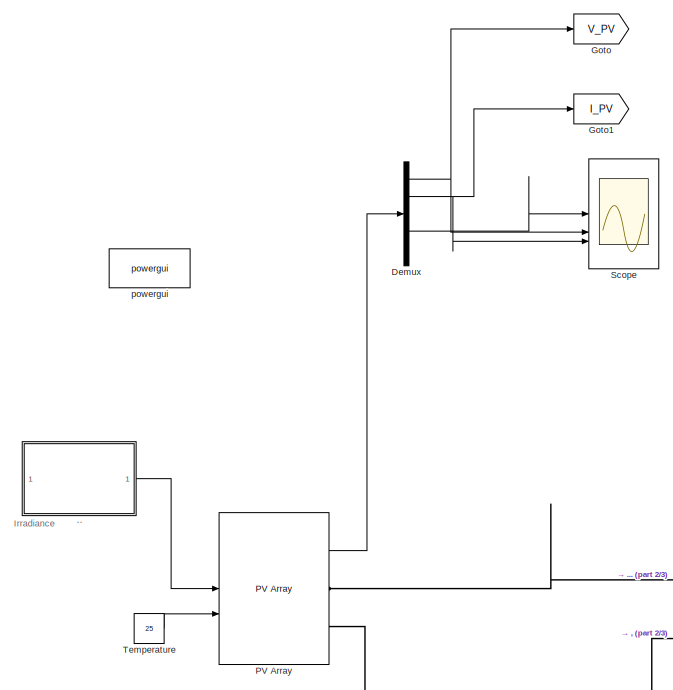
[diagram: root canvas - part 1/3, middle left region]
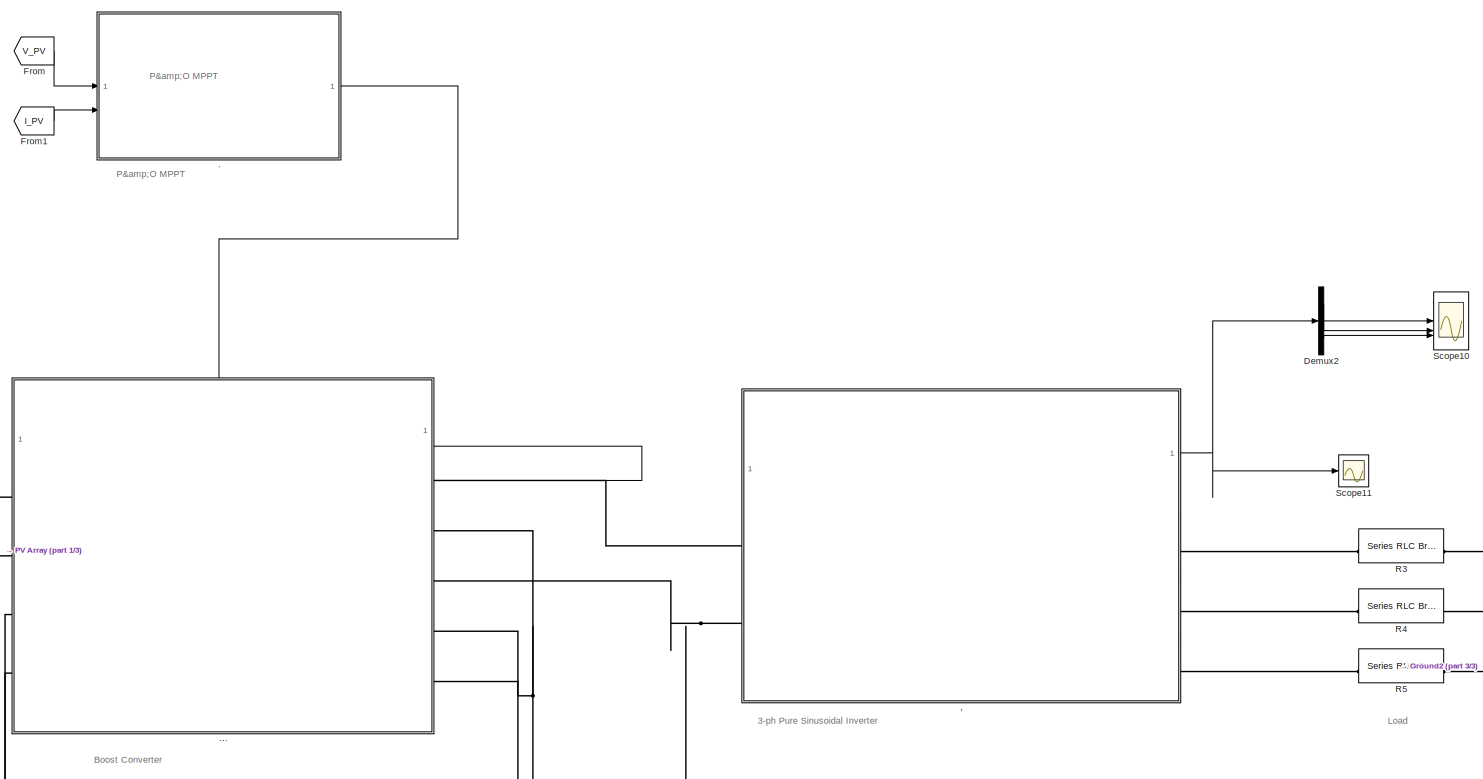
[diagram: root canvas - part 2/3, center side, full height]
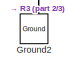
[diagram: root canvas - part 3/3, bottom right region]
MODEL slx_1923b6b5e098
KIND model
CONFIG AbsTol = auto
CONFIG EnableMultiTasking = off
CONFIG FixedStep = auto
CONFIG MaxStep = auto
CONFIG MinStep = auto
CONFIG RelTol = 1e-4
CONFIG SampleTimeConstraint = Unconstrained
CONFIG SolverName = ode23tb
CONFIG StartTime = 0.0
CONFIG StopTime = 10
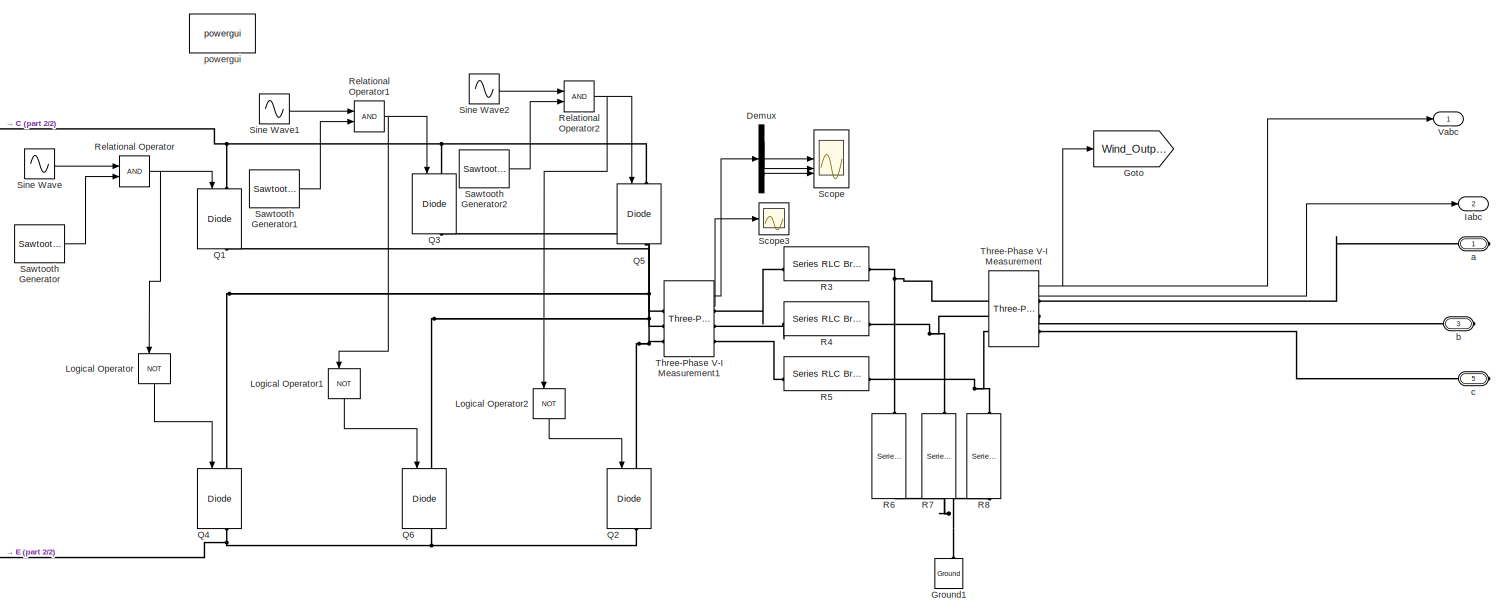
[diagram: , - part 1/2, most of the canvas]
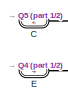
[diagram: , - part 2/2, middle left region]
BLOCK [SubSystem] ,
BLOCK [PMIOPort] ,/C
  Port = 2
  Side = Left
BLOCK [Demux] ,/Demux
  Outputs = 3
BLOCK [PMIOPort] ,/E
  Port = 4
  Side = Left
BLOCK [Goto] ,/Goto
  GotoTag = Wind_Output
BLOCK [Reference] ,/Ground1  REF=spsGroundLib/Ground
  LibrarySourceBlock = sps_lib/Utilities/Ground
  NameLocation = right
  SourceBlock = spsGroundLib/Ground
  SourceType = Ground
BLOCK [Outport] ,/Iabc
  Port = 2
BLOCK [Logic] ,/Logical Operator
  AllPortsSameDT = off
  NameLocation = left
  Operator = NOT
  OutDataTypeStr = boolean
BLOCK [Logic] ,/Logical Operator1
  AllPortsSameDT = off
  NameLocation = left
  Operator = NOT
  OutDataTypeStr = boolean
BLOCK [Logic] ,/Logical Operator2
  AllPortsSameDT = off
  NameLocation = left
  Operator = NOT
  OutDataTypeStr = boolean
BLOCK [Reference] ,/Q1  REF=spsIGBTDiodeLib/IGBT//Diode
  LibrarySourceBlock = sps_lib/Power Electronics/IGBT//Diode
  NameLocation = left
  SourceBlock = spsIGBTDiodeLib/IGBT//Diode
  SourceType = IGBT/Diode
BLOCK [Reference] ,/Q2  REF=spsIGBTDiodeLib/IGBT//Diode
  LibrarySourceBlock = sps_lib/Power Electronics/IGBT//Diode
  NameLocation = left
  SourceBlock = spsIGBTDiodeLib/IGBT//Diode
  SourceType = IGBT/Diode
BLOCK [Reference] ,/Q3  REF=spsIGBTDiodeLib/IGBT//Diode
  LibrarySourceBlock = sps_lib/Power Electronics/IGBT//Diode
  NameLocation = left
  SourceBlock = spsIGBTDiodeLib/IGBT//Diode
  SourceType = IGBT/Diode
BLOCK [Reference] ,/Q4  REF=spsIGBTDiodeLib/IGBT//Diode
  LibrarySourceBlock = sps_lib/Power Electronics/IGBT//Diode
  NameLocation = left
  SourceBlock = spsIGBTDiodeLib/IGBT//Diode
  SourceType = IGBT/Diode
BLOCK [Reference] ,/Q5  REF=spsIGBTDiodeLib/IGBT//Diode
  LibrarySourceBlock = sps_lib/Power Electronics/IGBT//Diode
  NameLocation = left
  SourceBlock = spsIGBTDiodeLib/IGBT//Diode
  SourceType = IGBT/Diode
BLOCK [Reference] ,/Q6  REF=spsIGBTDiodeLib/IGBT//Diode
  LibrarySourceBlock = sps_lib/Power Electronics/IGBT//Diode
  NameLocation = left
  SourceBlock = spsIGBTDiodeLib/IGBT//Diode
  SourceType = IGBT/Diode
BLOCK [Reference] ,/R3  REF=spsSeriesRLCBranchLib/Series RLC Branch
  LibrarySourceBlock = sps_lib/Passives/Series RLC Branch
  SourceBlock = spsSeriesRLCBranchLib/Series RLC Branch
  SourceType = Series RLC Branch
BLOCK [Reference] ,/R4  REF=spsSeriesRLCBranchLib/Series RLC Branch
  LibrarySourceBlock = sps_lib/Passives/Series RLC Branch
  SourceBlock = spsSeriesRLCBranchLib/Series RLC Branch
  SourceType = Series RLC Branch
BLOCK [Reference] ,/R5  REF=spsSeriesRLCBranchLib/Series RLC Branch
  LibrarySourceBlock = sps_lib/Passives/Series RLC Branch
  SourceBlock = spsSeriesRLCBranchLib/Series RLC Branch
  SourceType = Series RLC Branch
BLOCK [Reference] ,/R6  REF=spsSeriesRLCBranchLib/Series RLC Branch
  LibrarySourceBlock = sps_lib/Passives/Series RLC Branch
  NameLocation = left
  SourceBlock = spsSeriesRLCBranchLib/Series RLC Branch
  SourceType = Series RLC Branch
BLOCK [Reference] ,/R7  REF=spsSeriesRLCBranchLib/Series RLC Branch
  LibrarySourceBlock = sps_lib/Passives/Series RLC Branch
  NameLocation = left
  SourceBlock = spsSeriesRLCBranchLib/Series RLC Branch
  SourceType = Series RLC Branch
BLOCK [Reference] ,/R8  REF=spsSeriesRLCBranchLib/Series RLC Branch
  LibrarySourceBlock = sps_lib/Passives/Series RLC Branch
  NameLocation = left
  SourceBlock = spsSeriesRLCBranchLib/Series RLC Branch
  SourceType = Series RLC Branch
BLOCK [RelationalOperator] ,/Relational Operator
  InputSameDT = off
  OutDataTypeStr = boolean
BLOCK [RelationalOperator] ,/Relational Operator1
  InputSameDT = off
  OutDataTypeStr = boolean
BLOCK [RelationalOperator] ,/Relational Operator2
  InputSameDT = off
  OutDataTypeStr = boolean
BLOCK [Reference] ,/Sawtooth Generator  REF=spsSawtoothGeneratorLib/Sawtooth
Generator
  LibrarySourceBlock = sps_lib/Sources/Signal Generator Sources/Sawtooth\nGenerator
  SourceBlock = spsSawtoothGeneratorLib/Sawtooth\nGenerator
  SourceType = Sawtooth Generator
BLOCK [Reference] ,/Sawtooth Generator1  REF=spsSawtoothGeneratorLib/Sawtooth
Generator
  LibrarySourceBlock = sps_lib/Sources/Signal Generator Sources/Sawtooth\nGenerator
  SourceBlock = spsSawtoothGeneratorLib/Sawtooth\nGenerator
  SourceType = Sawtooth Generator
BLOCK [Reference] ,/Sawtooth Generator2  REF=spsSawtoothGeneratorLib/Sawtooth
Generator
  LibrarySourceBlock = sps_lib/Sources/Signal Generator Sources/Sawtooth\nGenerator
  SourceBlock = spsSawtoothGeneratorLib/Sawtooth\nGenerator
  SourceType = Sawtooth Generator
BLOCK [Scope] ,/Scope
  Floating = off
  NumInputPorts = 3
  ScopeSpecificationString = Simulink.scopes.TimeScopeBlockCfg('CurrentConfiguration', extmgr.ConfigurationSet(extmgr.Configuration('Core','General UI',true),extmgr.Configuration('Core','Source UI',true),extmgr.Configuration('Sources','WiredSimulink',true,'DataLoggingLimitDataPoints',true,'DataLoggingSaveFormat','Array','DataLoggingDecimation','1','DataLoggingDecimateData',true),extmgr.Configuration('Visuals','Time Domain',tr...<+3318ch>
BLOCK [Scope] ,/Scope3
  Floating = off
  NumInputPorts = 1
  ScopeSpecificationString = Simulink.scopes.TimeScopeBlockCfg('CurrentConfiguration', extmgr.ConfigurationSet(extmgr.Configuration('Core','General UI',true),extmgr.Configuration('Core','Source UI',true),extmgr.Configuration('Sources','WiredSimulink',true,'DataLoggingVariableName','ScopeData3'),extmgr.Configuration('Visuals','Time Domain',true),extmgr.Configuration('Tools','Plot Navigation',true),extmgr.Configuration('Tools',...<+40ch>
BLOCK [Sin] ,/Sine Wave
  Amplitude = 0.9
  Frequency = 2*pi*50
  SampleTime = 0
BLOCK [Sin] ,/Sine Wave1
  Amplitude = 0.9
  Frequency = 2*pi*50
  Phase = 120*(pi/180)
  SampleTime = 0
BLOCK [Sin] ,/Sine Wave2
  Amplitude = 0.9
  Frequency = 2*pi*50
  Phase = 240*(pi/180)
  SampleTime = 0
BLOCK [Reference] ,/Three-Phase V-I Measurement  REF=spsThreePhaseVIMeasurementLib/Three-Phase
V-I Measurement
  LibrarySourceBlock = sps_lib/Sensors and Measurements/Three-Phase\nV-I Measurement
  SourceBlock = spsThreePhaseVIMeasurementLib/Three-Phase\nV-I Measurement
  SourceType = Three-Phase VI Measurement
BLOCK [Reference] ,/Three-Phase V-I Measurement1  REF=spsThreePhaseVIMeasurementLib/Three-Phase
V-I Measurement
  LibrarySourceBlock = sps_lib/Sensors and Measurements/Three-Phase\nV-I Measurement
  SourceBlock = spsThreePhaseVIMeasurementLib/Three-Phase\nV-I Measurement
  SourceType = Three-Phase VI Measurement
BLOCK [Outport] ,/Vabc
BLOCK [PMIOPort] ,/a
  Side = Right
BLOCK [PMIOPort] ,/b
  Port = 3
  Side = Right
BLOCK [PMIOPort] ,/c
  Port = 5
  Side = Right
BLOCK [Reference] ,/powergui  REF=spspowerguiLib/powergui
  LibrarySourceBlock = sps_lib/powergui
  Priority = 1
  SourceBlock = spspowerguiLib/powergui
  SourceType = PSB option menu block
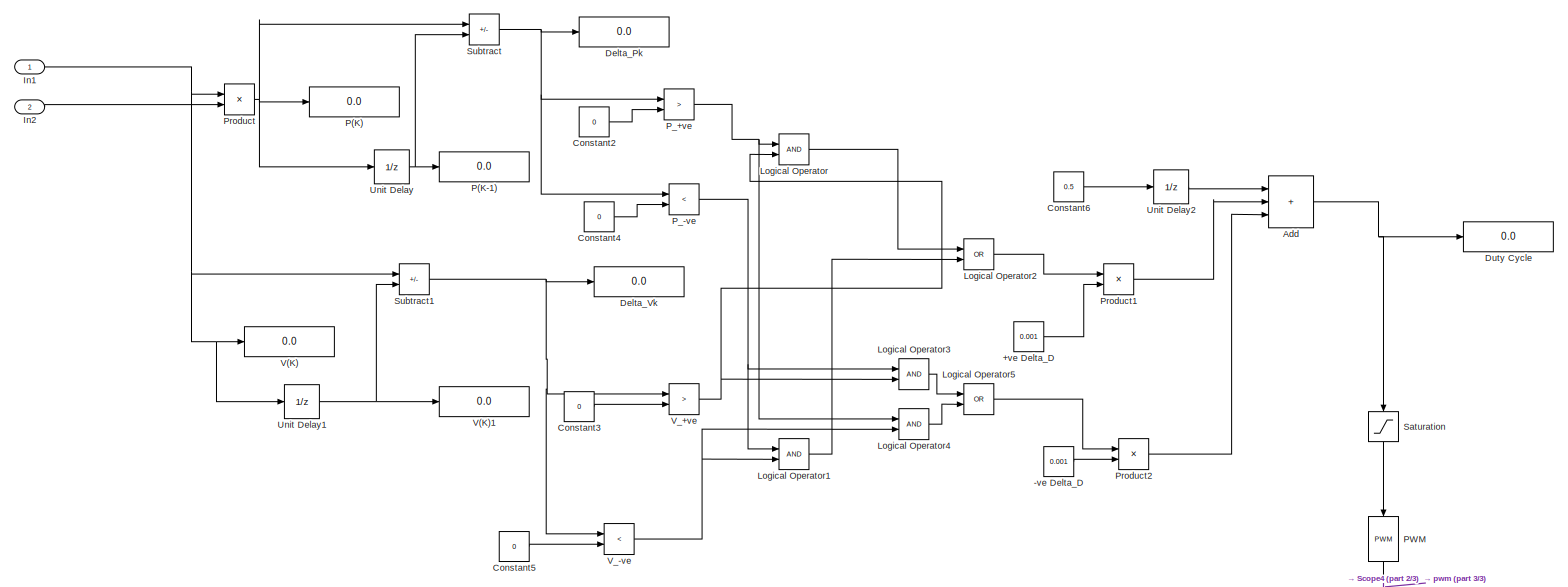
[diagram: . - part 1/3, full width, top band]
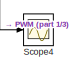
[diagram: . - part 2/3, bottom center region]
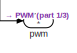
[diagram: . - part 3/3, bottom center region]
BLOCK [SubSystem] .
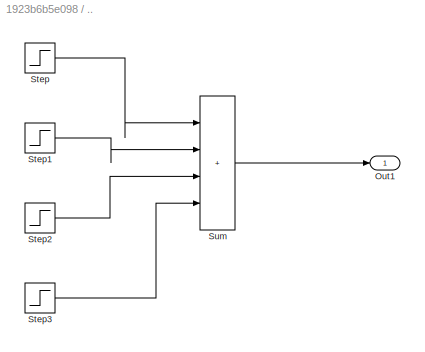
BLOCK [SubSystem] ..
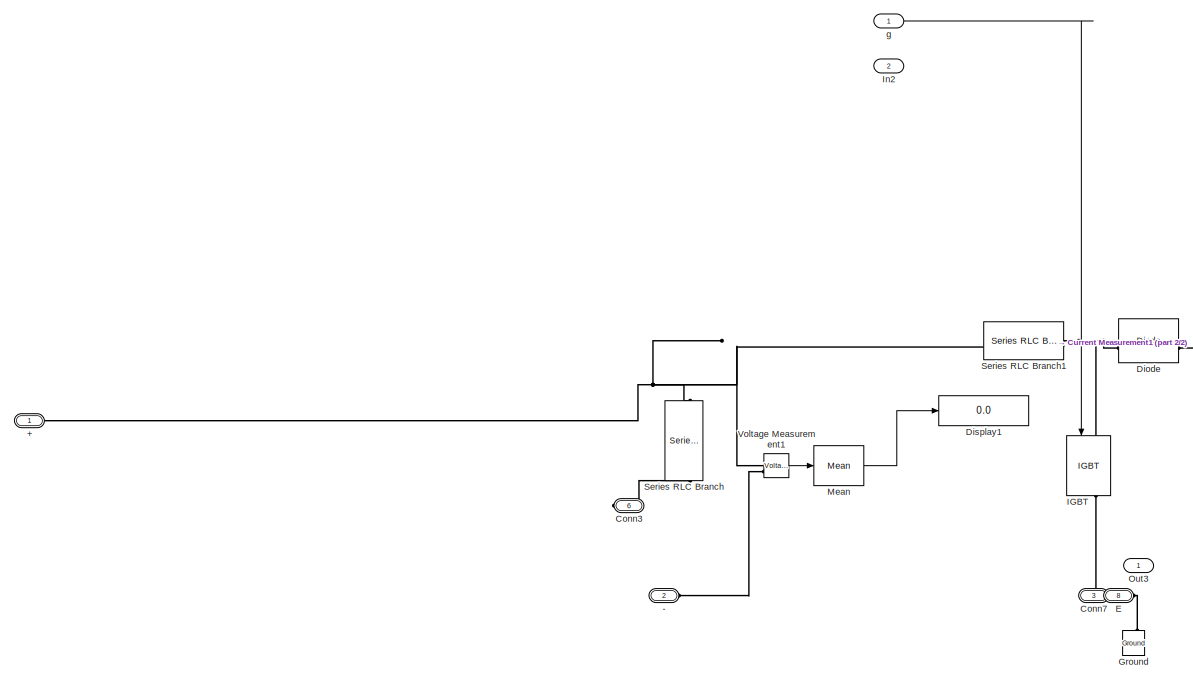
[diagram: ... - part 1/2, left side, full height]
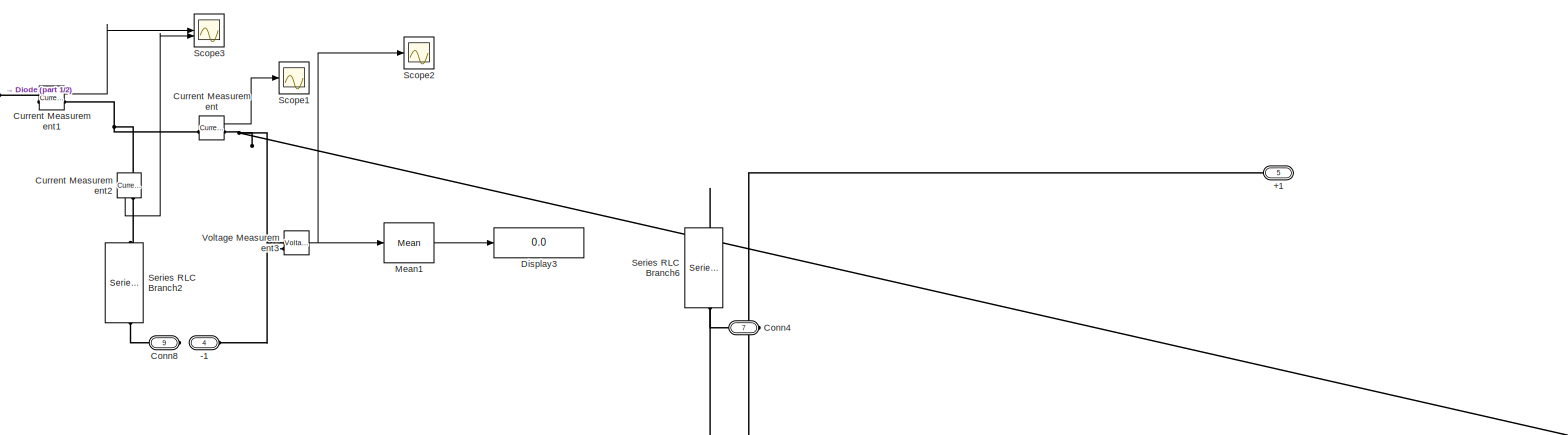
[diagram: ... - part 2/2, central region]
BLOCK [SubSystem] ...
  PortSchema = {"entries":[{"content":{"sides":[{"content":{"connectorIds":["LConn1","LConn2","LConn3","LConn4"]},"type":"ConnectorPlacement.EquallySpacedRectSide","uuid":"853841bf-2c6c-476b-8930-0dad7cd27bd4"},{"content":{"connectorIds":["RConn1","RConn2","RConn3","RConn4","RConn5"],"side":"RIGHT"},"type":"ConnectorPlacement.EquallySpacedRectSide","uuid":"d1ca2537-bf77-4a41-a82f-700dc7148288"},{"content":{"conn...<+469ch>
BLOCK [PMIOPort] .../+
  Side = Left
BLOCK [PMIOPort] .../+1
  Port = 5
  Side = Right
BLOCK [PMIOPort] .../-
  Port = 2
  Side = Left
BLOCK [PMIOPort] .../-1
  Port = 4
  Side = Left
BLOCK [PMIOPort] .../Conn3
  Port = 6
  Side = Right
BLOCK [PMIOPort] .../Conn4
  Port = 7
  Side = Right
BLOCK [PMIOPort] .../Conn7
  Port = 3
  Side = Left
BLOCK [PMIOPort] .../Conn8
  Port = 9
  Side = Right
BLOCK [Reference] .../Current Measurement  REF=spsCurrentMeasurementLib/Current Measurement
  LibrarySourceBlock = sps_lib/Sensors and Measurements/Current Measurement
  SourceBlock = spsCurrentMeasurementLib/Current Measurement
  SourceType = Current Measurement
  UserDataPersistent = on
BLOCK [Reference] .../Current Measurement1  REF=spsCurrentMeasurementLib/Current Measurement
  LibrarySourceBlock = sps_lib/Sensors and Measurements/Current Measurement
  SourceBlock = spsCurrentMeasurementLib/Current Measurement
  SourceType = Current Measurement
  UserDataPersistent = on
BLOCK [Reference] .../Current Measurement2  REF=spsCurrentMeasurementLib/Current Measurement
  LibrarySourceBlock = sps_lib/Sensors and Measurements/Current Measurement
  NameLocation = left
  SourceBlock = spsCurrentMeasurementLib/Current Measurement
  SourceType = Current Measurement
  UserDataPersistent = on
BLOCK [Reference] .../Diode  REF=spsDiodeLib/Diode
  LibrarySourceBlock = sps_lib/Power Electronics/Diode
  SourceBlock = spsDiodeLib/Diode
  SourceType = Diode
BLOCK [Display] .../Display1
  Decimation = 1
BLOCK [Display] .../Display3
  Decimation = 1
BLOCK [PMIOPort] .../E
  Port = 8
  Side = Right
BLOCK [Reference] .../Ground  REF=spsGroundLib/Ground
  LibrarySourceBlock = sps_lib/Utilities/Ground
  NameLocation = right
  SourceBlock = spsGroundLib/Ground
  SourceType = Ground
BLOCK [Reference] .../IGBT  REF=spsIGBTLib/IGBT
  LibrarySourceBlock = sps_lib/Power Electronics/IGBT
  NameLocation = left
  SourceBlock = spsIGBTLib/IGBT
  SourceType = IGBT
BLOCK [Inport] .../In2
  Port = 2
BLOCK [Reference] .../Mean  REF=spsMeanLib/Mean
  LibrarySourceBlock = sps_lib/Sensors and Measurements/Mean
  SourceBlock = spsMeanLib/Mean
  SourceType = Mean
BLOCK [Reference] .../Mean1  REF=spsMeanLib/Mean
  LibrarySourceBlock = sps_lib/Sensors and Measurements/Mean
  SourceBlock = spsMeanLib/Mean
  SourceType = Mean
BLOCK [Outport] .../Out3
BLOCK [Scope] .../Scope1
  Floating = off
  NumInputPorts = 1
  ScopeSpecificationString = Simulink.scopes.TimeScopeBlockCfg('CurrentConfiguration', extmgr.ConfigurationSet(extmgr.Configuration('Core','General UI',true),extmgr.Configuration('Core','Source UI',true),extmgr.Configuration('Sources','WiredSimulink',true,'DataLoggingVariableName','ScopeData1'),extmgr.Configuration('Visuals','Time Domain',true,'SerializedDisplays',{struct('MinYLimReal','-3.53623','MaxYLimReal','31.82607','YLa...<+1571ch>
BLOCK [Scope] .../Scope2
  Floating = off
  NumInputPorts = 1
  ScopeSpecificationString = Simulink.scopes.TimeScopeBlockCfg('CurrentConfiguration', extmgr.ConfigurationSet(extmgr.Configuration('Core','General UI',true),extmgr.Configuration('Core','Source UI',true),extmgr.Configuration('Sources','WiredSimulink',true,'DataLoggingVariableName','ScopeData1'),extmgr.Configuration('Visuals','Time Domain',true,'SerializedDisplays',{struct('MinYLimReal','-10.17424','MaxYLimReal','91.56816','YL...<+1600ch>
BLOCK [Scope] .../Scope3
  Floating = off
  NumInputPorts = 2
  ScopeSpecificationString = Simulink.scopes.TimeScopeBlockCfg('CurrentConfiguration', extmgr.ConfigurationSet(extmgr.Configuration('Core','General UI',true),extmgr.Configuration('Core','Source UI',true),extmgr.Configuration('Sources','WiredSimulink',true,'DataLoggingVariableName','ScopeData2'),extmgr.Configuration('Visuals','Time Domain',true,'SerializedDisplays',{struct('MinYLimReal','-1.13646','MaxYLimReal','8.81548','YLab...<+2426ch>
BLOCK [Reference] .../Series RLC Branch  REF=spsSeriesRLCBranchLib/Series RLC Branch
  LibrarySourceBlock = sps_lib/Passives/Series RLC Branch
  NameLocation = left
  SourceBlock = spsSeriesRLCBranchLib/Series RLC Branch
  SourceType = Series RLC Branch
BLOCK [Reference] .../Series RLC Branch1  REF=spsSeriesRLCBranchLib/Series RLC Branch
  LibrarySourceBlock = sps_lib/Passives/Series RLC Branch
  SourceBlock = spsSeriesRLCBranchLib/Series RLC Branch
  SourceType = Series RLC Branch
BLOCK [Reference] .../Series RLC Branch2  REF=spsSeriesRLCBranchLib/Series RLC Branch
  LibrarySourceBlock = sps_lib/Passives/Series RLC Branch
  NameLocation = left
  SourceBlock = spsSeriesRLCBranchLib/Series RLC Branch
  SourceType = Series RLC Branch
BLOCK [Reference] .../Series RLC Branch6  REF=spsSeriesRLCBranchLib/Series RLC Branch
  LibrarySourceBlock = sps_lib/Passives/Series RLC Branch
  NameLocation = left
  SourceBlock = spsSeriesRLCBranchLib/Series RLC Branch
  SourceType = Series RLC Branch
BLOCK [Reference] .../Voltage Measurement1  REF=spsVoltageMeasurementLib/Voltage Measurement
  LibrarySourceBlock = sps_lib/Sensors and Measurements/Voltage Measurement
  SourceBlock = spsVoltageMeasurementLib/Voltage Measurement
  SourceType = Voltage Measurement
  UserDataPersistent = on
BLOCK [Reference] .../Voltage Measurement3  REF=spsVoltageMeasurementLib/Voltage Measurement
  LibrarySourceBlock = sps_lib/Sensors and Measurements/Voltage Measurement
  SourceBlock = spsVoltageMeasurementLib/Voltage Measurement
  SourceType = Voltage Measurement
  UserDataPersistent = on
BLOCK [Inport] .../g
BLOCK [Outport] ../Out1
BLOCK [Step] ../Step
  After = 1200
  Before = 1200
  SampleTime = 0
  Time = 0
BLOCK [Step] ../Step1
  After = -300
  SampleTime = 0
  Time = 3
BLOCK [Step] ../Step2
  After = -250
  SampleTime = 0
  Time = 5
BLOCK [Step] ../Step3
  After = 350
  SampleTime = 0
  Time = 8
BLOCK [Sum] ../Sum
  IconShape = rectangular
  Inputs = |++++
BLOCK [Constant] ./+ve Delta_D
  Value = 0.001
BLOCK [Constant] ./-ve Delta_D
  Value = 0.001
BLOCK [Sum] ./Add
  IconShape = rectangular
  Inputs = +++
BLOCK [Constant] ./Constant2
  Value = 0
BLOCK [Constant] ./Constant3
  Value = 0
BLOCK [Constant] ./Constant4
  Value = 0
BLOCK [Constant] ./Constant5
  Value = 0
BLOCK [Constant] ./Constant6
  Value = 0.5
BLOCK [Display] ./Delta_Pk
  Decimation = 1
BLOCK [Display] ./Delta_Vk
  Decimation = 1
BLOCK [Display] ./Duty Cycle
  Decimation = 1
BLOCK [Inport] ./In1
BLOCK [Inport] ./In2
  Port = 2
BLOCK [Logic] ./Logical Operator
  AllPortsSameDT = off
  OutDataTypeStr = boolean
BLOCK [Logic] ./Logical Operator1
  AllPortsSameDT = off
  OutDataTypeStr = boolean
BLOCK [Logic] ./Logical Operator2
  AllPortsSameDT = off
  Operator = OR
  OutDataTypeStr = boolean
BLOCK [Logic] ./Logical Operator3
  AllPortsSameDT = off
  OutDataTypeStr = boolean
BLOCK [Logic] ./Logical Operator4
  AllPortsSameDT = off
  OutDataTypeStr = boolean
BLOCK [Logic] ./Logical Operator5
  AllPortsSameDT = off
  Operator = OR
  OutDataTypeStr = boolean
BLOCK [Display] ./P(K)
  Decimation = 1
BLOCK [Display] ./P(K-1)
  Decimation = 1
BLOCK [Reference] ./PWM  REF=simulink/Discontinuities/PWM
  DisableCoverage = on
  NameLocation = left
  SourceBlock = simulink/Discontinuities/PWM
  SourceType = PWM
BLOCK [RelationalOperator] ./P_+ve
  InputSameDT = off
  Operator = >
  OutDataTypeStr = boolean
  RndMeth = Simplest
BLOCK [RelationalOperator] ./P_-ve
  InputSameDT = off
  Operator = <
  OutDataTypeStr = boolean
  RndMeth = Simplest
BLOCK [Product] ./Product
BLOCK [Product] ./Product1
BLOCK [Product] ./Product2
BLOCK [Saturate] ./Saturation
  LowerLimit = 0.1
  NameLocation = left
  UpperLimit = 0.9
BLOCK [Scope] ./Scope4
  Floating = off
  NumInputPorts = 1
  ScopeSpecificationString = Simulink.scopes.TimeScopeBlockCfg('CurrentConfiguration', extmgr.ConfigurationSet(extmgr.Configuration('Core','General UI',true),extmgr.Configuration('Core','Source UI',true),extmgr.Configuration('Sources','WiredSimulink',true,'DataLoggingVariableName','ScopeData2'),extmgr.Configuration('Visuals','Time Domain',true,'SerializedDisplays',{struct('MinYLimReal','-0.125','MaxYLimReal','1.125','YLabelRe...<+1565ch>
BLOCK [Sum] ./Subtract
  IconShape = rectangular
  Inputs = +-
BLOCK [Sum] ./Subtract1
  IconShape = rectangular
  Inputs = +-
BLOCK [UnitDelay] ./Unit Delay
  HasFrameUpgradeWarning = on
  SampleTime = -1
BLOCK [UnitDelay] ./Unit Delay1
  HasFrameUpgradeWarning = on
  SampleTime = -1
BLOCK [UnitDelay] ./Unit Delay2
  HasFrameUpgradeWarning = on
  SampleTime = -1
BLOCK [Display] ./V(K)
  Decimation = 1
BLOCK [Display] ./V(K)1
  Decimation = 1
BLOCK [RelationalOperator] ./V_+ve
  InputSameDT = off
  Operator = >
  OutDataTypeStr = boolean
  RndMeth = Simplest
BLOCK [RelationalOperator] ./V_-ve
  InputSameDT = off
  Operator = <
  OutDataTypeStr = boolean
  RndMeth = Simplest
BLOCK [Outport] ./pwm
BLOCK [Demux] Demux
  Outputs = 5
BLOCK [Demux] Demux2
  Outputs = 3
BLOCK [From] From
  GotoTag = V_PV
BLOCK [From] From1
  GotoTag = I_PV
BLOCK [Goto] Goto
  GotoTag = V_PV
BLOCK [Goto] Goto1
  GotoTag = I_PV
BLOCK [Reference] Ground2  REF=spsGroundLib/Ground
  LibrarySourceBlock = sps_lib/Utilities/Ground
  NameLocation = right
  SourceBlock = spsGroundLib/Ground
  SourceType = Ground
BLOCK [Reference] PV Array  REF=spsPVArrayLib/PV Array
  LibrarySourceBlock = sps_lib/Sources/PV Array
  SourceBlock = spsPVArrayLib/PV Array
  SourceType = PV array
BLOCK [Reference] R3  REF=spsSeriesRLCBranchLib/Series RLC Branch
  LibrarySourceBlock = sps_lib/Passives/Series RLC Branch
  SourceBlock = spsSeriesRLCBranchLib/Series RLC Branch
  SourceType = Series RLC Branch
BLOCK [Reference] R4  REF=spsSeriesRLCBranchLib/Series RLC Branch
  LibrarySourceBlock = sps_lib/Passives/Series RLC Branch
  SourceBlock = spsSeriesRLCBranchLib/Series RLC Branch
  SourceType = Series RLC Branch
BLOCK [Reference] R5  REF=spsSeriesRLCBranchLib/Series RLC Branch
  LibrarySourceBlock = sps_lib/Passives/Series RLC Branch
  SourceBlock = spsSeriesRLCBranchLib/Series RLC Branch
  SourceType = Series RLC Branch
BLOCK [Scope] Scope
  Floating = off
  NumInputPorts = 3
  ScopeSpecificationString = Simulink.scopes.TimeScopeBlockCfg('CurrentConfiguration', extmgr.ConfigurationSet(extmgr.Configuration('Core','General UI',true),extmgr.Configuration('Core','Source UI',true),extmgr.Configuration('Sources','WiredSimulink',true),extmgr.Configuration('Visuals','Time Domain',true,'SerializedDisplays',{struct('MinYLimReal','581.25','MaxYLimReal','1268.75','YLabelReal','','MinYLimMag','581.25','MaxYLim...<+3232ch>
BLOCK [Scope] Scope10
  Floating = off
  NumInputPorts = 3
  ScopeSpecificationString = Simulink.scopes.TimeScopeBlockCfg('CurrentConfiguration', extmgr.ConfigurationSet(extmgr.Configuration('Core','General UI',true),extmgr.Configuration('Core','Source UI',true),extmgr.Configuration('Sources','WiredSimulink',true,'DataLoggingVariableName','ScopeData1','DataLoggingLimitDataPoints',true,'DataLoggingSaveFormat','Array','DataLoggingDecimation','1','DataLoggingDecimateData',true),extmgr.C...<+3323ch>
BLOCK [Scope] Scope11
  Floating = off
  NumInputPorts = 1
  ScopeSpecificationString = Simulink.scopes.TimeScopeBlockCfg('CurrentConfiguration', extmgr.ConfigurationSet(extmgr.Configuration('Core','General UI',true,'FigureColor',[1 1 1]),extmgr.Configuration('Core','Source UI',true),extmgr.Configuration('Sources','WiredSimulink',true,'DataLoggingVariableName','ScopeData2'),extmgr.Configuration('Visuals','Time Domain',true,'SerializedDisplays',{struct('MinYLimReal','-32.37573','MaxYL...<+1600ch>
BLOCK [Constant] Temperature
  Value = 25
BLOCK [Reference] powergui  REF=sps_lib/powergui
  LibrarySourceBlock = sps_lib/powergui
  Priority = 1
  SourceBlock = sps_lib/powergui
  SourceType = PSB option menu block
ANNOTATION (root): Irradiance
ANNOTATION (root): Load
ANNOTATION (root): 3-ph Pure Sinusoidal Inverter
ANNOTATION (root): Boost Converter
ANNOTATION (root): P&O MPPT
LINE ,/Demux:1 -> ,/Scope:1
LINE ,/Demux:2 -> ,/Scope:2
LINE ,/Demux:3 -> ,/Scope:3
LINE ,/Logical Operator1:1 -> ,/Q6:1
LINE ,/Logical Operator2:1 -> ,/Q2:1
LINE ,/Logical Operator:1 -> ,/Q4:1
NET ,/Relational Operator1:1 -> ,/Logical Operator1:1, ,/Q3:1
NET ,/Relational Operator2:1 -> ,/Logical Operator2:1, ,/Q5:1
NET ,/Relational Operator:1 -> ,/Logical Operator:1, ,/Q1:1
LINE ,/Sawtooth Generator1:1 -> ,/Relational Operator1:2
LINE ,/Sawtooth Generator2:1 -> ,/Relational Operator2:2
LINE ,/Sawtooth Generator:1 -> ,/Relational Operator:2
LINE ,/Sine Wave1:1 -> ,/Relational Operator1:1
LINE ,/Sine Wave2:1 -> ,/Relational Operator2:1
LINE ,/Sine Wave:1 -> ,/Relational Operator:1
LINE ,/Three-Phase V-I Measurement1:1 -> ,/Demux:1
LINE ,/Three-Phase V-I Measurement1:2 -> ,/Scope3:1
NET ,/Three-Phase V-I Measurement:1 -> ,/Goto:1, ,/Vabc:1
LINE ,/Three-Phase V-I Measurement:2 -> ,/Iabc:1
NET ,:1 -> Demux2:1, Scope11:1
LINE .../Current Measurement1:1 -> .../Scope3:1
LINE .../Current Measurement2:1 -> .../Scope3:2
LINE .../Current Measurement:1 -> .../Scope1:1
LINE .../Mean1:1 -> .../Display3:1
LINE .../Mean:1 -> .../Display1:1
LINE .../Voltage Measurement1:1 -> .../Mean:1
NET .../Voltage Measurement3:1 -> .../Mean1:1, .../Scope2:1
LINE .../g:1 -> .../IGBT:1
LINE ...:1 -> ...:2
LINE ../Step1:1 -> ../Sum:2
LINE ../Step2:1 -> ../Sum:3
LINE ../Step3:1 -> ../Sum:4
LINE ../Step:1 -> ../Sum:1
LINE ../Sum:1 -> ../Out1:1
LINE ..:1 -> PV Array:1
LINE ./+ve Delta_D:1 -> ./Product1:2
LINE ./-ve Delta_D:1 -> ./Product2:2
NET ./Add:1 -> ./Duty Cycle:1, ./Saturation:1
LINE ./Constant2:1 -> ./P_+ve:2
LINE ./Constant3:1 -> ./V_+ve:2
LINE ./Constant4:1 -> ./P_-ve:2
LINE ./Constant5:1 -> ./V_-ve:2
LINE ./Constant6:1 -> ./Unit Delay2:1
NET ./In1:1 -> ./Product:1, ./Subtract1:1, ./Unit Delay1:1, ./V(K):1
LINE ./In2:1 -> ./Product:2
LINE ./Logical Operator1:1 -> ./Logical Operator2:2
LINE ./Logical Operator2:1 -> ./Product1:1
LINE ./Logical Operator3:1 -> ./Logical Operator5:1
LINE ./Logical Operator4:1 -> ./Logical Operator5:2
LINE ./Logical Operator5:1 -> ./Product2:1
LINE ./Logical Operator:1 -> ./Logical Operator2:1
NET ./PWM:1 -> ./Scope4:1, ./pwm:1
NET ./P_+ve:1 -> ./Logical Operator4:1, ./Logical Operator:1
NET ./P_-ve:1 -> ./Logical Operator1:1, ./Logical Operator3:1
LINE ./Product1:1 -> ./Add:2
LINE ./Product2:1 -> ./Add:3
NET ./Product:1 -> ./P(K):1, ./Subtract:1, ./Unit Delay:1
LINE ./Saturation:1 -> ./PWM:1
NET ./Subtract1:1 -> ./Delta_Vk:1, ./V_+ve:1, ./V_-ve:1
NET ./Subtract:1 -> ./Delta_Pk:1, ./P_+ve:1, ./P_-ve:1
NET ./Unit Delay1:1 -> ./Subtract1:2, ./V(K)1:1
LINE ./Unit Delay2:1 -> ./Add:1
NET ./Unit Delay:1 -> ./P(K-1):1, ./Subtract:2
NET ./V_+ve:1 -> ./Logical Operator3:2, ./Logical Operator:2
NET ./V_-ve:1 -> ./Logical Operator1:2, ./Logical Operator4:2
LINE .:1 -> ...:1
LINE Demux2:1 -> Scope10:1
LINE Demux2:2 -> Scope10:2
LINE Demux2:3 -> Scope10:3
NET Demux:1 -> Goto:1, Scope:2
NET Demux:2 -> Goto1:1, Scope:3
LINE Demux:4 -> Scope:1
LINE From1:1 -> .:2
LINE From:1 -> .:1
LINE PV Array:1 -> Demux:1
LINE Temperature:1 -> PV Array:2
PNET net1: ,/C:RConn1 -- ,/Q1:LConn1 -- ,/Q3:LConn1 -- ,/Q5:LConn1
PNET net2: ,/E:RConn1 -- ,/Q2:RConn1 -- ,/Q4:RConn1 -- ,/Q6:RConn1
PNET net3: ,/Ground1:LConn1 -- ,/R6:RConn1 -- ,/R7:RConn1 -- ,/R8:RConn1
PNET net4: ,/Q1:RConn1 -- ,/Q4:LConn1 -- ,/Three-Phase V-I Measurement1:LConn1
PNET net5: ,/Q2:LConn1 -- ,/Q5:RConn1 -- ,/Three-Phase V-I Measurement1:LConn3
PNET net6: ,/Q3:RConn1 -- ,/Q6:LConn1 -- ,/Three-Phase V-I Measurement1:LConn2
PLINE ,/R3:LConn1 -- ,/Three-Phase V-I Measurement1:RConn1
PNET net7: ,/R3:RConn1 -- ,/R6:LConn1 -- ,/Three-Phase V-I Measurement:LConn1
PLINE ,/R4:LConn1 -- ,/Three-Phase V-I Measurement1:RConn2
PNET net8: ,/R4:RConn1 -- ,/R7:LConn1 -- ,/Three-Phase V-I Measurement:LConn2
PLINE ,/R5:LConn1 -- ,/Three-Phase V-I Measurement1:RConn3
PNET net9: ,/R5:RConn1 -- ,/R8:LConn1 -- ,/Three-Phase V-I Measurement:LConn3
PLINE ,/Three-Phase V-I Measurement:RConn1 -- ,/a:RConn1
PLINE ,/Three-Phase V-I Measurement:RConn2 -- ,/b:RConn1
PLINE ,/Three-Phase V-I Measurement:RConn3 -- ,/c:RConn1
PLINE ,:LConn1 -- ...:RConn1
PNET net10: ,:LConn2 -- ...:LConn2 -- ...:LConn3 -- ...:LConn4 -- ...:RConn2 -- ...:RConn3 -- ...:RConn4 -- ...:RConn5 -- PV Array:RConn2
PLINE ,:RConn1 -- R3:LConn1
PLINE ,:RConn2 -- R4:LConn1
PLINE ,:RConn3 -- R5:LConn1
PNET net11: .../+1:RConn1 -- .../Current Measurement:RConn1 -- .../Series RLC Branch6:LConn1 -- .../Voltage Measurement3:LConn1
PNET net12: .../+:RConn1 -- .../Series RLC Branch1:LConn1 -- .../Series RLC Branch:LConn1 -- .../Voltage Measurement1:LConn1
PLINE .../-1:RConn1 -- .../Voltage Measurement3:LConn2
PLINE .../-:RConn1 -- .../Voltage Measurement1:LConn2
PLINE .../Conn3:RConn1 -- .../Series RLC Branch:RConn1
PLINE .../Conn4:RConn1 -- .../Series RLC Branch6:RConn1
PLINE .../Conn7:RConn1 -- .../Ground:LConn1
PLINE .../Conn8:RConn1 -- .../Series RLC Branch2:RConn1
PLINE .../Current Measurement1:LConn1 -- .../Diode:RConn1
PNET net13: .../Current Measurement1:RConn1 -- .../Current Measurement2:LConn1 -- .../Current Measurement:LConn1
PLINE .../Current Measurement2:RConn1 -- .../Series RLC Branch2:LConn1
PNET net14: .../Diode:LConn1 -- .../IGBT:LConn1 -- .../Series RLC Branch1:RConn1
PLINE .../E:RConn1 -- .../IGBT:RConn1
PLINE ...:LConn1 -- PV Array:RConn1
PNET net15: Ground2:LConn1 -- R3:RConn1 -- R4:RConn1 -- R5:RConn1
note: NET lines group one-source signal fan-out (src -> all destinations, sorted); 1:1 wires keep LINE; PNET lines group multi-terminal physical nets as a canonical sorted terminal list (undirected conserving connections); 2-terminal nets keep the pairwise PLINE form
